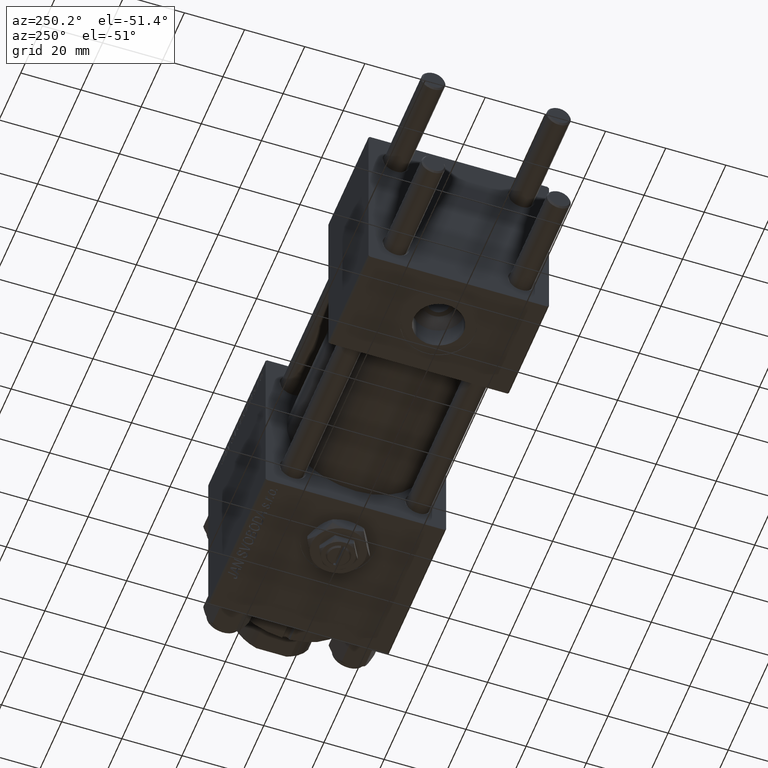
[diagram: clean part render]
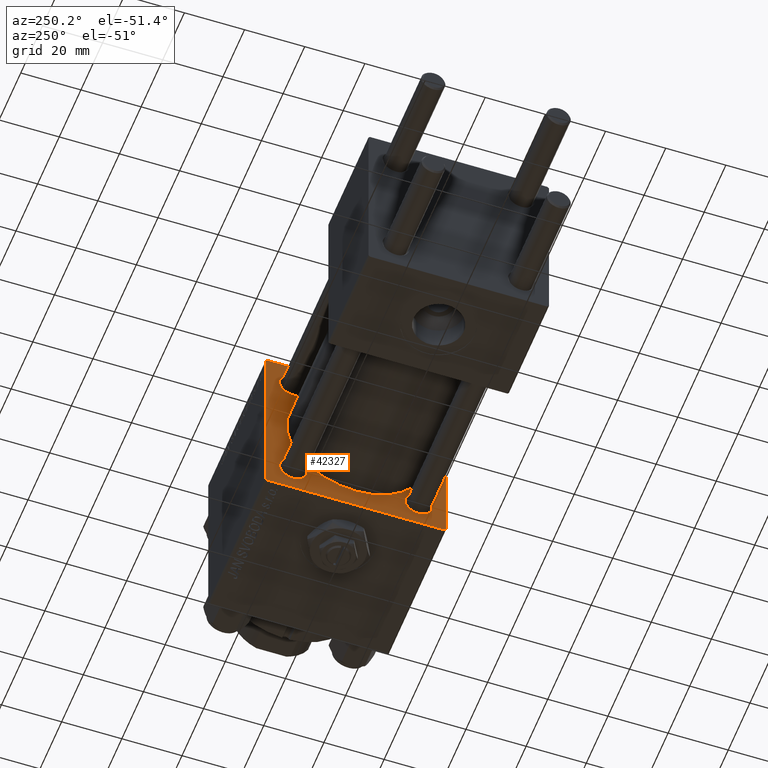
[diagram: same view with one face highlighted and labeled with its STEP entity id]
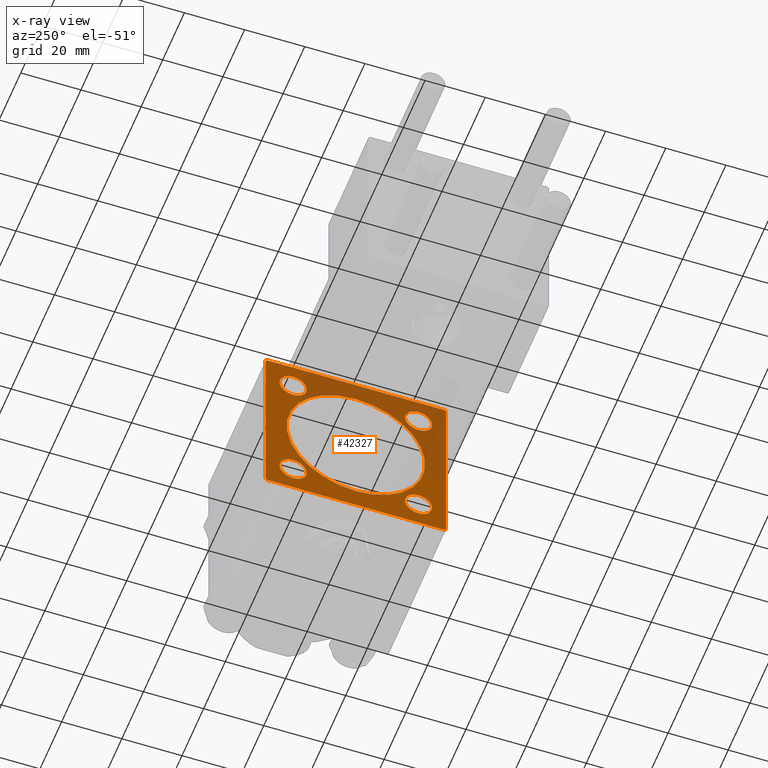
[diagram: x-ray of the same camera — body ghosted, the highlighted face saturated]
A machine part, auxiliary view. The second image highlights one B-rep face of the part: STEP entity #42327.
The next image is the same camera in x-ray: the body ghosted, the highlighted face saturated — about 36% of this face is hidden behind the body in this view.
In plain terms, the highlighted planar face has unit normal (-1, 0, 0).
Its self-contained STEP definition (entity closure, byte-faithful):
#220 = ORIENTED_EDGE ( 'NONE', *, *, #32573, .T. ) ;
#520 = VECTOR ( 'NONE', #6890, 1000.000000000000000 ) ;
#2321 = CARTESIAN_POINT ( 'NONE',  ( 95.00000000000000000, 2.816687638038911957E-15, -23.00000000000000000 ) ) ;
#2429 = CARTESIAN_POINT ( 'NONE',  ( 95.00000000000000000, -20.84999999999999076, -20.85000000000000497 ) ) ;
#2644 = CARTESIAN_POINT ( 'NONE',  ( 95.00000000000000000, 30.00000000000000000, -29.49999999999997868 ) ) ;
#2933 = LINE ( 'NONE', #26430, #520 ) ;
#3140 = EDGE_LOOP ( 'NONE', ( #35176, #9450 ) ) ;
#3675 = EDGE_CURVE ( 'NONE', #40162, #24550, #4524, .T. ) ;
#4300 = VERTEX_POINT ( 'NONE', #34892 ) ;
#4463 = DIRECTION ( 'NONE',  ( 0.000000000000000000, 0.000000000000000000, 1.000000000000000000 ) ) ;
#4524 = CIRCLE ( 'NONE', #33102, 4.500000000000003553 ) ;
#4699 = DIRECTION ( 'NONE',  ( 0.000000000000000000, 0.7071067811865474617, -0.7071067811865474617 ) ) ;
#5224 = EDGE_LOOP ( 'NONE', ( #220, #6073 ) ) ;
#5537 = PLANE ( 'NONE',  #32709 ) ;
#6073 = ORIENTED_EDGE ( 'NONE', *, *, #15513, .T. ) ;
#6682 = EDGE_CURVE ( 'NONE', #35274, #23766, #39900, .T. ) ;
#6890 = DIRECTION ( 'NONE',  ( 0.000000000000000000, -1.000000000000000000, -1.156482317317871478E-16 ) ) ;
#7029 = VERTEX_POINT ( 'NONE', #30204 ) ;
#7134 = ORIENTED_EDGE ( 'NONE', *, *, #23469, .T. ) ;
#7185 = DIRECTION ( 'NONE',  ( 1.000000000000000000, -0.000000000000000000, 0.000000000000000000 ) ) ;
#7196 = VERTEX_POINT ( 'NONE', #48342 ) ;
#7711 = ORIENTED_EDGE ( 'NONE', *, *, #18153, .T. ) ;
#8965 = CARTESIAN_POINT ( 'NONE',  ( 95.00000000000000000, 29.50000000000000000, 30.00000000000000000 ) ) ;
#8969 = FACE_BOUND ( 'NONE', #5224, .T. ) ;
#9281 = CARTESIAN_POINT ( 'NONE',  ( 95.00000000000000000, 29.74999999999999645, -29.74999999999999645 ) ) ;
#9450 = ORIENTED_EDGE ( 'NONE', *, *, #32918, .T. ) ;
#9496 = FACE_BOUND ( 'NONE', #39030, .T. ) ;
#9839 = DIRECTION ( 'NONE',  ( 1.000000000000000000, 0.000000000000000000, 0.000000000000000000 ) ) ;
#10127 = CIRCLE ( 'NONE', #12650, 4.500000000000003553 ) ;
#10309 = DIRECTION ( 'NONE',  ( 0.000000000000000000, 0.000000000000000000, -1.000000000000000000 ) ) ;
#10494 = CARTESIAN_POINT ( 'NONE',  ( 95.00000000000000000, 20.84999999999999787, -20.85000000000000142 ) ) ;
#10789 = EDGE_CURVE ( 'NONE', #28588, #45415, #2933, .T. ) ;
#11183 = CARTESIAN_POINT ( 'NONE',  ( 95.00000000000000000, 20.84999999999999787, 25.35000000000000497 ) ) ;
#11716 = CARTESIAN_POINT ( 'NONE',  ( 95.00000000000000000, -29.50000000000000000, 29.99999999999999289 ) ) ;
#12178 = LINE ( 'NONE', #45046, #34277 ) ;
#12225 = EDGE_CURVE ( 'NONE', #7029, #45878, #13501, .T. ) ;
#12584 = CARTESIAN_POINT ( 'NONE',  ( 95.00000000000000000, 29.50000000000000000, -29.99999999999999289 ) ) ;
#12650 = AXIS2_PLACEMENT_3D ( 'NONE', #34612, #45970, #34363 ) ;
#13013 = CIRCLE ( 'NONE', #21447, 23.00000000000000000 ) ;
#13045 = VECTOR ( 'NONE', #45886, 1000.000000000000114 ) ;
#13051 = ORIENTED_EDGE ( 'NONE', *, *, #19710, .T. ) ;
#13331 = AXIS2_PLACEMENT_3D ( 'NONE', #10494, #50818, #14696 ) ;
#13501 = LINE ( 'NONE', #25624, #40137 ) ;
#13776 = VERTEX_POINT ( 'NONE', #11183 ) ;
#14286 = VERTEX_POINT ( 'NONE', #39507 ) ;
#14696 = DIRECTION ( 'NONE',  ( 0.000000000000000000, 0.000000000000000000, 1.000000000000000000 ) ) ;
#15011 = VERTEX_POINT ( 'NONE', #44847 ) ;
#15248 = EDGE_CURVE ( 'NONE', #15623, #29480, #16591, .T. ) ;
#15513 = EDGE_CURVE ( 'NONE', #14286, #15011, #36028, .T. ) ;
#15623 = VERTEX_POINT ( 'NONE', #12584 ) ;
#16102 = DIRECTION ( 'NONE',  ( 0.000000000000000000, 0.000000000000000000, 1.000000000000000000 ) ) ;
#16462 = CARTESIAN_POINT ( 'NONE',  ( 95.00000000000000000, -30.00000000000000000, -29.49999999999998579 ) ) ;
#16591 = LINE ( 'NONE', #20285, #32654 ) ;
#17153 = VERTEX_POINT ( 'NONE', #16462 ) ;
#17195 = AXIS2_PLACEMENT_3D ( 'NONE', #22990, #9839, #18758 ) ;
#17814 = DIRECTION ( 'NONE',  ( -0.000000000000000000, 0.7071067811865474617, 0.7071067811865474617 ) ) ;
#17825 = CIRCLE ( 'NONE', #21222, 4.500000000000003553 ) ;
#17932 = AXIS2_PLACEMENT_3D ( 'NONE', #31638, #35860, #16102 ) ;
#18037 = CIRCLE ( 'NONE', #24788, 4.500000000000003553 ) ;
#18153 = EDGE_CURVE ( 'NONE', #24550, #40162, #10127, .T. ) ;
#18241 = ORIENTED_EDGE ( 'NONE', *, *, #3675, .T. ) ;
#18758 = DIRECTION ( 'NONE',  ( 0.000000000000000000, 0.000000000000000000, -1.000000000000000000 ) ) ;
#19299 = LINE ( 'NONE', #35359, #49244 ) ;
#19710 = EDGE_CURVE ( 'NONE', #45878, #15623, #41688, .T. ) ;
#19992 = AXIS2_PLACEMENT_3D ( 'NONE', #43299, #7185, #34614 ) ;
#20285 = CARTESIAN_POINT ( 'NONE',  ( 95.00000000000000000, 30.00000000000000000, -29.99999999999999289 ) ) ;
#21222 = AXIS2_PLACEMENT_3D ( 'NONE', #32963, #25598, #33744 ) ;
#21263 = ORIENTED_EDGE ( 'NONE', *, *, #33655, .T. ) ;
#21447 = AXIS2_PLACEMENT_3D ( 'NONE', #48981, #28688, #32632 ) ;
#21634 = DIRECTION ( 'NONE',  ( -1.000000000000000000, 0.000000000000000000, -0.000000000000000000 ) ) ;
#22543 = EDGE_CURVE ( 'NONE', #13776, #51630, #17825, .T. ) ;
#22942 = AXIS2_PLACEMENT_3D ( 'NONE', #27920, #32391, #4463 ) ;
#22990 = CARTESIAN_POINT ( 'NONE',  ( 95.00000000000000000, 0.000000000000000000, 0.000000000000000000 ) ) ;
#23469 = EDGE_CURVE ( 'NONE', #4300, #7196, #40586, .T. ) ;
#23766 = VERTEX_POINT ( 'NONE', #2321 ) ;
#24550 = VERTEX_POINT ( 'NONE', #45892 ) ;
#24740 = CARTESIAN_POINT ( 'NONE',  ( 95.00000000000000000, 29.74999999999999645, 29.74999999999999645 ) ) ;
#24788 = AXIS2_PLACEMENT_3D ( 'NONE', #45210, #25192, #41252 ) ;
#25192 = DIRECTION ( 'NONE',  ( 1.000000000000000000, -0.000000000000000000, 0.000000000000000000 ) ) ;
#25325 = CARTESIAN_POINT ( 'NONE',  ( 95.00000000000000000, 0.000000000000000000, 0.000000000000000000 ) ) ;
#25584 = FACE_OUTER_BOUND ( 'NONE', #49889, .T. ) ;
#25598 = DIRECTION ( 'NONE',  ( 1.000000000000000000, -0.000000000000000000, 0.000000000000000000 ) ) ;
#25624 = CARTESIAN_POINT ( 'NONE',  ( 95.00000000000000000, 30.00000000000000000, 30.00000000000000000 ) ) ;
#26167 = DIRECTION ( 'NONE',  ( 0.000000000000000000, 0.000000000000000000, 1.000000000000000000 ) ) ;
#26430 = CARTESIAN_POINT ( 'NONE',  ( 95.00000000000000000, 30.00000000000000000, 30.00000000000000000 ) ) ;
#26576 = CARTESIAN_POINT ( 'NONE',  ( 95.00000000000000000, 20.84999999999999787, 16.34999999999999787 ) ) ;
#27326 = VECTOR ( 'NONE', #4699, 1000.000000000000114 ) ;
#27920 = CARTESIAN_POINT ( 'NONE',  ( 95.00000000000000000, -20.84999999999999076, 20.85000000000000497 ) ) ;
#28151 = ORIENTED_EDGE ( 'NONE', *, *, #49895, .F. ) ;
#28471 = ORIENTED_EDGE ( 'NONE', *, *, #15248, .T. ) ;
#28588 = VERTEX_POINT ( 'NONE', #8965 ) ;
#28688 = DIRECTION ( 'NONE',  ( 1.000000000000000000, 0.000000000000000000, 0.000000000000000000 ) ) ;
#29153 = ORIENTED_EDGE ( 'NONE', *, *, #33026, .T. ) ;
#29275 = FACE_BOUND ( 'NONE', #36015, .T. ) ;
#29480 = VERTEX_POINT ( 'NONE', #41779 ) ;
#29603 = EDGE_CURVE ( 'NONE', #51630, #13776, #40651, .T. ) ;
#30204 = CARTESIAN_POINT ( 'NONE',  ( 95.00000000000000000, 30.00000000000000000, 29.50000000000000000 ) ) ;
#31638 = CARTESIAN_POINT ( 'NONE',  ( 95.00000000000000000, 20.84999999999999787, 20.85000000000000142 ) ) ;
#32391 = DIRECTION ( 'NONE',  ( 1.000000000000000000, -0.000000000000000000, 0.000000000000000000 ) ) ;
#32573 = EDGE_CURVE ( 'NONE', #15011, #14286, #18037, .T. ) ;
#32632 = DIRECTION ( 'NONE',  ( 0.000000000000000000, 0.000000000000000000, -1.000000000000000000 ) ) ;
#32654 = VECTOR ( 'NONE', #40310, 1000.000000000000000 ) ;
#32709 = AXIS2_PLACEMENT_3D ( 'NONE', #25325, #21634, #37701 ) ;
#32905 = ORIENTED_EDGE ( 'NONE', *, *, #22543, .T. ) ;
#32918 = EDGE_CURVE ( 'NONE', #23766, #35274, #13013, .T. ) ;
#32963 = CARTESIAN_POINT ( 'NONE',  ( 95.00000000000000000, 20.84999999999999787, 20.85000000000000142 ) ) ;
#33026 = EDGE_CURVE ( 'NONE', #28588, #7029, #43963, .T. ) ;
#33102 = AXIS2_PLACEMENT_3D ( 'NONE', #2429, #33794, #26167 ) ;
#33212 = ORIENTED_EDGE ( 'NONE', *, *, #10789, .F. ) ;
#33517 = EDGE_CURVE ( 'NONE', #49152, #45415, #19299, .T. ) ;
#33655 = EDGE_CURVE ( 'NONE', #29480, #17153, #49855, .T. ) ;
#33729 = FACE_BOUND ( 'NONE', #42123, .T. ) ;
#33744 = DIRECTION ( 'NONE',  ( 0.000000000000000000, 0.000000000000000000, 1.000000000000000000 ) ) ;
#33794 = DIRECTION ( 'NONE',  ( 1.000000000000000000, -0.000000000000000000, 0.000000000000000000 ) ) ;
#34032 = DIRECTION ( 'NONE',  ( -0.000000000000000000, -0.7071067811865474617, -0.7071067811865474617 ) ) ;
#34277 = VECTOR ( 'NONE', #41090, 1000.000000000000000 ) ;
#34363 = DIRECTION ( 'NONE',  ( 0.000000000000000000, 0.000000000000000000, 1.000000000000000000 ) ) ;
#34515 = ORIENTED_EDGE ( 'NONE', *, *, #39791, .T. ) ;
#34555 = VECTOR ( 'NONE', #34032, 1000.000000000000114 ) ;
#34612 = CARTESIAN_POINT ( 'NONE',  ( 95.00000000000000000, -20.84999999999999076, -20.85000000000000497 ) ) ;
#34614 = DIRECTION ( 'NONE',  ( 0.000000000000000000, 0.000000000000000000, 1.000000000000000000 ) ) ;
#34892 = CARTESIAN_POINT ( 'NONE',  ( 95.00000000000000000, -20.84999999999999076, 25.35000000000000853 ) ) ;
#35176 = ORIENTED_EDGE ( 'NONE', *, *, #6682, .T. ) ;
#35274 = VERTEX_POINT ( 'NONE', #46736 ) ;
#35359 = CARTESIAN_POINT ( 'NONE',  ( 95.00000000000000000, -29.74999999999999645, 29.74999999999999645 ) ) ;
#35860 = DIRECTION ( 'NONE',  ( 1.000000000000000000, -0.000000000000000000, 0.000000000000000000 ) ) ;
#36015 = EDGE_LOOP ( 'NONE', ( #7134, #34515 ) ) ;
#36028 = CIRCLE ( 'NONE', #13331, 4.500000000000003553 ) ;
#37701 = DIRECTION ( 'NONE',  ( -0.000000000000000000, 0.000000000000000000, 1.000000000000000000 ) ) ;
#39030 = EDGE_LOOP ( 'NONE', ( #7711, #18241 ) ) ;
#39171 = CARTESIAN_POINT ( 'NONE',  ( 95.00000000000000000, -30.00000000000000000, 29.49999999999999289 ) ) ;
#39507 = CARTESIAN_POINT ( 'NONE',  ( 95.00000000000000000, 20.84999999999999787, -25.35000000000000497 ) ) ;
#39791 = EDGE_CURVE ( 'NONE', #7196, #4300, #43571, .T. ) ;
#39900 = CIRCLE ( 'NONE', #17195, 23.00000000000000000 ) ;
#40137 = VECTOR ( 'NONE', #10309, 1000.000000000000000 ) ;
#40162 = VERTEX_POINT ( 'NONE', #51606 ) ;
#40310 = DIRECTION ( 'NONE',  ( 0.000000000000000000, -1.000000000000000000, -1.156482317317871478E-16 ) ) ;
#40586 = CIRCLE ( 'NONE', #22942, 4.500000000000003553 ) ;
#40651 = CIRCLE ( 'NONE', #17932, 4.500000000000003553 ) ;
#41090 = DIRECTION ( 'NONE',  ( 0.000000000000000000, 0.000000000000000000, -1.000000000000000000 ) ) ;
#41135 = FACE_BOUND ( 'NONE', #3140, .T. ) ;
#41252 = DIRECTION ( 'NONE',  ( 0.000000000000000000, 0.000000000000000000, 1.000000000000000000 ) ) ;
#41688 = LINE ( 'NONE', #9281, #34555 ) ;
#41779 = CARTESIAN_POINT ( 'NONE',  ( 95.00000000000000000, -29.50000000000000000, -30.00000000000000000 ) ) ;
#42123 = EDGE_LOOP ( 'NONE', ( #32905, #48408 ) ) ;
#42327 = ADVANCED_FACE ( 'NONE', ( #29275, #33729, #8969, #9496, #41135, #25584 ), #5537, .T. ) ;
#43299 = CARTESIAN_POINT ( 'NONE',  ( 95.00000000000000000, -20.84999999999999076, 20.85000000000000497 ) ) ;
#43571 = CIRCLE ( 'NONE', #19992, 4.500000000000003553 ) ;
#43963 = LINE ( 'NONE', #24740, #27326 ) ;
#44847 = CARTESIAN_POINT ( 'NONE',  ( 95.00000000000000000, 20.84999999999999787, -16.34999999999999787 ) ) ;
#45046 = CARTESIAN_POINT ( 'NONE',  ( 95.00000000000000000, -30.00000000000000000, 29.99999999999999289 ) ) ;
#45210 = CARTESIAN_POINT ( 'NONE',  ( 95.00000000000000000, 20.84999999999999787, -20.85000000000000142 ) ) ;
#45415 = VERTEX_POINT ( 'NONE', #11716 ) ;
#45878 = VERTEX_POINT ( 'NONE', #2644 ) ;
#45886 = DIRECTION ( 'NONE',  ( 0.000000000000000000, -0.7071067811865474617, 0.7071067811865474617 ) ) ;
#45892 = CARTESIAN_POINT ( 'NONE',  ( 95.00000000000000000, -20.84999999999999076, -16.35000000000000142 ) ) ;
#45935 = ORIENTED_EDGE ( 'NONE', *, *, #12225, .T. ) ;
#45970 = DIRECTION ( 'NONE',  ( 1.000000000000000000, -0.000000000000000000, 0.000000000000000000 ) ) ;
#46736 = CARTESIAN_POINT ( 'NONE',  ( 95.00000000000000000, 0.000000000000000000, 23.00000000000000000 ) ) ;
#48342 = CARTESIAN_POINT ( 'NONE',  ( 95.00000000000000000, -20.84999999999999076, 16.35000000000000142 ) ) ;
#48408 = ORIENTED_EDGE ( 'NONE', *, *, #29603, .T. ) ;
#48981 = CARTESIAN_POINT ( 'NONE',  ( 95.00000000000000000, 0.000000000000000000, 0.000000000000000000 ) ) ;
#49152 = VERTEX_POINT ( 'NONE', #39171 ) ;
#49244 = VECTOR ( 'NONE', #17814, 1000.000000000000114 ) ;
#49327 = ORIENTED_EDGE ( 'NONE', *, *, #33517, .T. ) ;
#49855 = LINE ( 'NONE', #50378, #13045 ) ;
#49889 = EDGE_LOOP ( 'NONE', ( #28471, #21263, #28151, #49327, #33212, #29153, #45935, #13051 ) ) ;
#49895 = EDGE_CURVE ( 'NONE', #49152, #17153, #12178, .T. ) ;
#50378 = CARTESIAN_POINT ( 'NONE',  ( 95.00000000000000000, -29.74999999999999645, -29.74999999999999645 ) ) ;
#50818 = DIRECTION ( 'NONE',  ( 1.000000000000000000, -0.000000000000000000, 0.000000000000000000 ) ) ;
#51606 = CARTESIAN_POINT ( 'NONE',  ( 95.00000000000000000, -20.84999999999999076, -25.35000000000000853 ) ) ;
#51630 = VERTEX_POINT ( 'NONE', #26576 ) ;